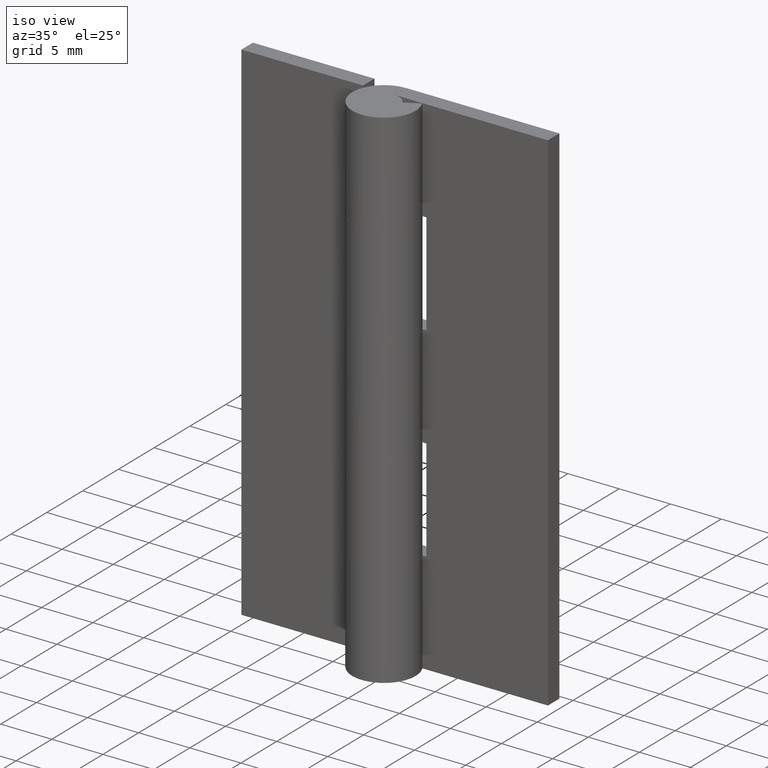
[diagram: clean part render]
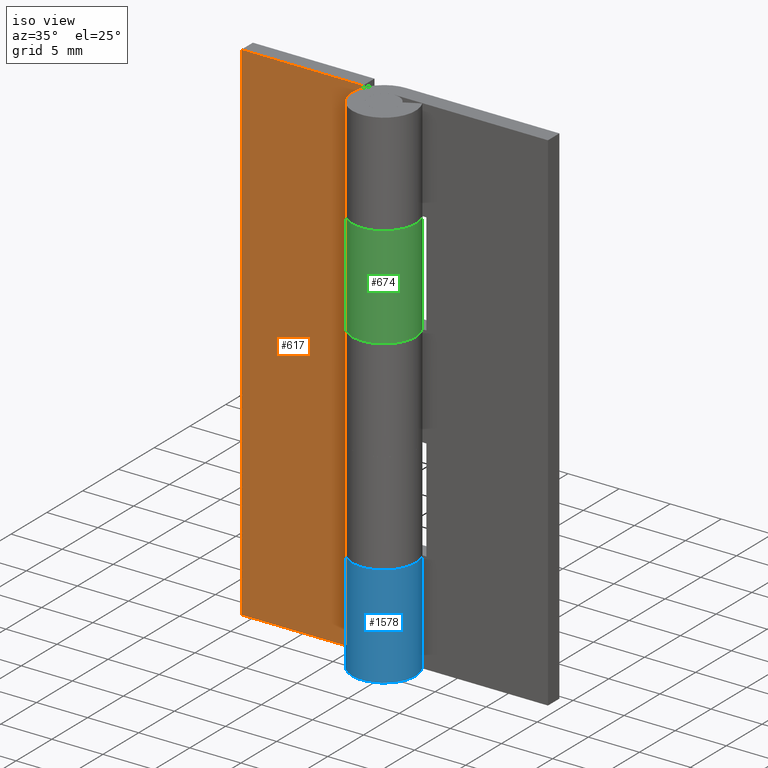
[diagram: same view with three faces highlighted in distinct colors, each labeled with its STEP entity id]
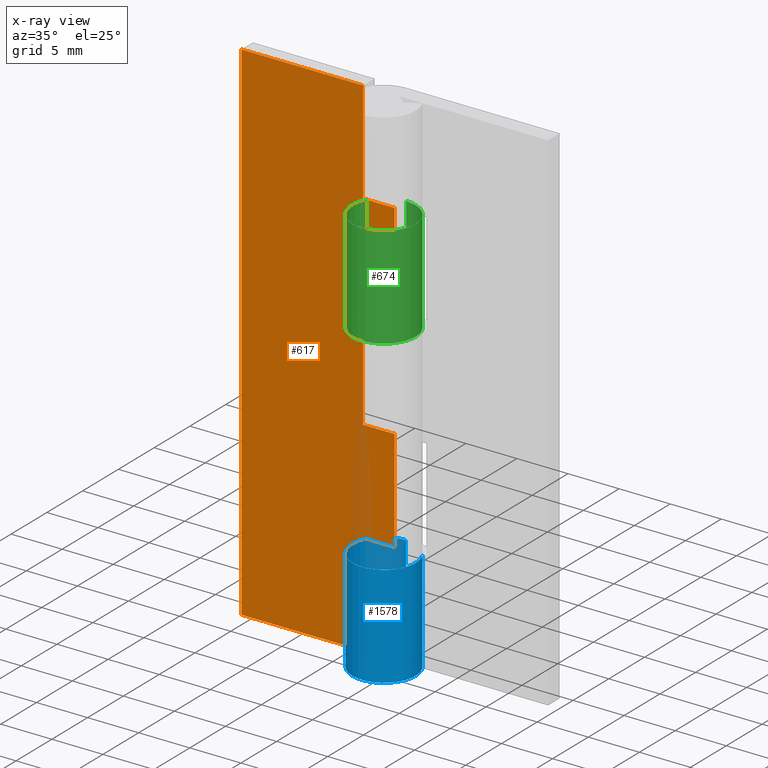
[diagram: x-ray of the same camera — body ghosted, the three highlighted faces saturated]
A machine part, iso view with three faces highlighted in distinct colors.
The next image is the same camera in x-ray (body ghosted, the three faces saturated) — at least one of them is partly hidden behind the body in this view.
Their STEP definitions:

[orange] entity #617 — the highlighted face is a freeform B-spline surface patch.
#79=CARTESIAN_POINT('',(-3.099998000000000,1.499999999999946,20.0));
#80=VERTEX_POINT('',#79);
#86=CARTESIAN_POINT('',(0.0,1.500000000000000,20.0));
#87=VERTEX_POINT('',#86);
#88=CARTESIAN_POINT('',(0.0,1.500000000000000,20.0));
#89=CARTESIAN_POINT('',(-3.099998000000000,1.499999999999946,20.0));
#90=QUASI_UNIFORM_CURVE('',1,(#88,#89),.UNSPECIFIED.,.F.,.U.);
#91=EDGE_CURVE('',#87,#80,#90,.T.);
#135=CARTESIAN_POINT('',(-3.099998000000000,1.499999999999946,29.999993000000099));
#136=VERTEX_POINT('',#135);
#142=CARTESIAN_POINT('',(-3.099998000000000,1.499999999999946,20.0));
#143=CARTESIAN_POINT('',(-3.099998000000000,1.499999999999946,29.999993000000099));
#144=QUASI_UNIFORM_CURVE('',1,(#142,#143),.UNSPECIFIED.,.F.,.U.);
#145=EDGE_CURVE('',#80,#136,#144,.T.);
#191=CARTESIAN_POINT('',(0.0,1.500000000000000,29.999993000000099));
#192=VERTEX_POINT('',#191);
#212=CARTESIAN_POINT('',(-3.099998000000000,1.499999999999946,29.999993000000099));
#213=CARTESIAN_POINT('',(0.0,1.500000000000000,29.999993000000099));
#214=QUASI_UNIFORM_CURVE('',1,(#212,#213),.UNSPECIFIED.,.F.,.U.);
#215=EDGE_CURVE('',#136,#192,#214,.T.);
#225=CARTESIAN_POINT('',(-3.099998000000000,1.499999999999946,10.000000000000121));
#226=VERTEX_POINT('',#225);
#227=CARTESIAN_POINT('',(-3.099998000000000,1.500000000000000,0.0));
#228=VERTEX_POINT('',#227);
#229=CARTESIAN_POINT('',(-3.099998000000000,1.499999999999946,10.000000000000121));
#230=CARTESIAN_POINT('',(-3.099998000000000,1.500000000000000,0.0));
#231=QUASI_UNIFORM_CURVE('',1,(#229,#230),.UNSPECIFIED.,.F.,.U.);
#232=EDGE_CURVE('',#226,#228,#231,.T.);
#291=CARTESIAN_POINT('',(0.0,1.500000000000000,10.000000000000121));
#292=VERTEX_POINT('',#291);
#312=CARTESIAN_POINT('',(0.0,1.500000000000000,10.000000000000121));
#313=CARTESIAN_POINT('',(-3.099998000000000,1.499999999999946,10.000000000000121));
#314=QUASI_UNIFORM_CURVE('',1,(#312,#313),.UNSPECIFIED.,.F.,.U.);
#315=EDGE_CURVE('',#292,#226,#314,.T.);
#331=CARTESIAN_POINT('',(-3.099998000000000,1.499999999999946,49.999993000000003));
#332=VERTEX_POINT('',#331);
#333=CARTESIAN_POINT('',(-3.099998000000000,1.499999999999946,39.999992999999897));
#334=VERTEX_POINT('',#333);
#335=CARTESIAN_POINT('',(-3.099998000000000,1.499999999999946,49.999993000000003));
#336=CARTESIAN_POINT('',(-3.099998000000000,1.499999999999946,39.999992999999897));
#337=QUASI_UNIFORM_CURVE('',1,(#335,#336),.UNSPECIFIED.,.F.,.U.);
#338=EDGE_CURVE('',#332,#334,#337,.T.);
#367=CARTESIAN_POINT('',(0.0,1.500000000000000,39.999992999999897));
#368=VERTEX_POINT('',#367);
#369=CARTESIAN_POINT('',(-3.099998000000000,1.499999999999946,39.999992999999897));
#370=CARTESIAN_POINT('',(0.0,1.500000000000000,39.999992999999897));
#371=QUASI_UNIFORM_CURVE('',1,(#369,#370),.UNSPECIFIED.,.F.,.U.);
#372=EDGE_CURVE('',#334,#368,#371,.T.);
#439=CARTESIAN_POINT('',(-15.0,1.500000000000000,0.0));
#440=VERTEX_POINT('',#439);
#446=CARTESIAN_POINT('',(-15.0,1.500000000000000,49.999993000000003));
#447=VERTEX_POINT('',#446);
#448=CARTESIAN_POINT('',(-15.0,1.500000000000000,49.999993000000003));
#449=CARTESIAN_POINT('',(-15.0,1.500000000000000,0.0));
#450=QUASI_UNIFORM_CURVE('',1,(#448,#449),.UNSPECIFIED.,.F.,.U.);
#451=EDGE_CURVE('',#447,#440,#450,.T.);
#480=CARTESIAN_POINT('',(-15.0,1.500000000000000,49.999993000000003));
#481=CARTESIAN_POINT('',(-3.099998000000000,1.499999999999946,49.999993000000003));
#482=QUASI_UNIFORM_CURVE('',1,(#480,#481),.UNSPECIFIED.,.F.,.U.);
#483=EDGE_CURVE('',#447,#332,#482,.T.);
#499=CARTESIAN_POINT('',(-15.0,1.500000000000000,0.0));
#500=CARTESIAN_POINT('',(-3.099998000000000,1.500000000000000,0.0));
#501=QUASI_UNIFORM_CURVE('',1,(#499,#500),.UNSPECIFIED.,.F.,.U.);
#502=EDGE_CURVE('',#440,#228,#501,.T.);
#585=CARTESIAN_POINT('',(0.0,1.500000000000000,20.0));
#586=CARTESIAN_POINT('',(0.0,1.500000000000000,10.000000000000121));
#587=QUASI_UNIFORM_CURVE('',1,(#585,#586),.UNSPECIFIED.,.F.,.U.);
#588=EDGE_CURVE('',#87,#292,#587,.T.);
#594=CARTESIAN_POINT('',(-15.749249970927091,1.500000000000000,-2.497499374805216));
#595=CARTESIAN_POINT('',(-15.749249970927091,1.500000000000000,52.497490139631353));
#596=CARTESIAN_POINT('',(0.749250373258442,1.500000000000000,-2.497499374805216));
#597=CARTESIAN_POINT('',(0.749250373258442,1.500000000000000,52.497490139631353));
#598=B_SPLINE_SURFACE_WITH_KNOTS('',1,1,((#594,#596),(#595,#597)),.UNSPECIFIED.,.F.,.F.,.U.,(2,2),(2,2),(0.0,54.994989514436568),(0.0,16.498500344185530),.UNSPECIFIED.);
#599=ORIENTED_EDGE('',*,*,#145,.T.);
#600=ORIENTED_EDGE('',*,*,#215,.T.);
#601=CARTESIAN_POINT('',(0.0,1.500000000000000,39.999992999999897));
#602=CARTESIAN_POINT('',(0.0,1.500000000000000,29.999993000000099));
#603=QUASI_UNIFORM_CURVE('',1,(#601,#602),.UNSPECIFIED.,.F.,.U.);
#604=EDGE_CURVE('',#368,#192,#603,.T.);
#605=ORIENTED_EDGE('',*,*,#604,.F.);
#606=ORIENTED_EDGE('',*,*,#372,.F.);
#607=ORIENTED_EDGE('',*,*,#338,.F.);
#608=ORIENTED_EDGE('',*,*,#483,.F.);
#609=ORIENTED_EDGE('',*,*,#451,.T.);
#610=ORIENTED_EDGE('',*,*,#502,.T.);
#611=ORIENTED_EDGE('',*,*,#232,.F.);
#612=ORIENTED_EDGE('',*,*,#315,.F.);
#613=ORIENTED_EDGE('',*,*,#588,.F.);
#614=ORIENTED_EDGE('',*,*,#91,.T.);
#615=EDGE_LOOP('',(#599,#600,#605,#606,#607,#608,#609,#610,#611,#612,#613,#614));
#616=FACE_OUTER_BOUND('',#615,.T.);
#617=ADVANCED_FACE('',(#616),#598,.F.);

[blue] entity #1578 — the highlighted face is a freeform B-spline surface patch.
#851=CARTESIAN_POINT('',(2.739981751764055,1.450000000000000,10.000000000000121));
#852=VERTEX_POINT('',#851);
#853=CARTESIAN_POINT('',(0.0,3.099998000000050,10.000000000000121));
#854=VERTEX_POINT('',#853);
#855=CARTESIAN_POINT('',(2.739981751764055,1.450000000000000,10.000000000000121));
#856=CARTESIAN_POINT('',(3.842027408336786,-0.632471143840447,10.000000000000121));
#857=CARTESIAN_POINT('',(2.130594885355316,-2.251790737784743,10.000000000000121));
#858=CARTESIAN_POINT('',(0.419162362373844,-3.871110331729040,10.000000000000121));
#859=CARTESIAN_POINT('',(-1.599218559171947,-2.655655344977874,10.000000000000121));
#860=CARTESIAN_POINT('',(-3.617599480717733,-1.440200358226712,10.000000000000121));
#861=CARTESIAN_POINT('',(-2.986848545660753,0.829898189834438,10.000000000000121));
#862=CARTESIAN_POINT('',(-2.356097610603771,3.099996737895593,10.000000000000121));
#863=CARTESIAN_POINT('',(0.0,3.099998000000050,10.000000000000121));
#871=(BOUNDED_CURVE()B_SPLINE_CURVE(2,(#855,#856,#857,#858,#859,#860,#861,#862,#863),.UNSPECIFIED.,.F.,.U.)B_SPLINE_CURVE_WITH_KNOTS((3,2,2,2,3),(0.0,0.250000000000000,0.500000000000000,0.750000000000000,1.0),.UNSPECIFIED.)CURVE()GEOMETRIC_REPRESENTATION_ITEM()RATIONAL_B_SPLINE_CURVE((1.0,0.796150117301085,1.0,0.796150117301085,1.0,0.796150117301085,1.0,0.796150117301085,1.0))REPRESENTATION_ITEM(''));
#872=EDGE_CURVE('',#852,#854,#871,.T.);
#916=CARTESIAN_POINT('',(0.003521362805221,3.099998000000050,10.000000000000121));
#917=VERTEX_POINT('',#916);
#923=CARTESIAN_POINT('',(0.003521362805221,3.099998000000050,10.000000000000121));
#924=CARTESIAN_POINT('',(0.0,3.099998000000050,10.000000000000121));
#925=QUASI_UNIFORM_CURVE('',1,(#923,#924),.UNSPECIFIED.,.F.,.U.);
#926=EDGE_CURVE('',#917,#854,#925,.T.);
#1176=CARTESIAN_POINT('',(2.739981751764055,1.450000000000000,0.0));
#1177=VERTEX_POINT('',#1176);
#1183=CARTESIAN_POINT('',(0.003521362805222,3.099998000000000,0.0));
#1184=VERTEX_POINT('',#1183);
#1185=CARTESIAN_POINT('',(2.739981751764052,1.450000000000000,0.0));
#1186=CARTESIAN_POINT('',(3.842352259281344,-0.633086258124317,0.0));
#1187=CARTESIAN_POINT('',(2.129955333572984,-2.252396562993293,0.0));
#1188=CARTESIAN_POINT('',(0.417558407864622,-3.871706867862269,0.0));
#1189=CARTESIAN_POINT('',(-1.600726611546716,-2.654745621540069,0.0));
#1190=CARTESIAN_POINT('',(-3.619011630958053,-1.437784375217869,0.0));
#1191=CARTESIAN_POINT('',(-2.986140433580756,0.832445380150635,0.0));
#1192=CARTESIAN_POINT('',(-2.353269236203459,3.102675135519134,0.0));
#1193=CARTESIAN_POINT('',(0.003521362805222,3.099997999999999,0.0));
#1201=(BOUNDED_CURVE()B_SPLINE_CURVE(2,(#1185,#1186,#1187,#1188,#1189,#1190,#1191,#1192,#1193),.UNSPECIFIED.,.F.,.U.)B_SPLINE_CURVE_WITH_KNOTS((3,2,2,2,3),(0.0,0.250000000000000,0.500000000000000,0.750000000000000,1.0),.UNSPECIFIED.)CURVE()GEOMETRIC_REPRESENTATION_ITEM()RATIONAL_B_SPLINE_CURVE((1.0,0.796064190964140,1.0,0.796064190964140,1.0,0.796064190964140,1.0,0.796064190964140,1.0))REPRESENTATION_ITEM(''));
#1202=EDGE_CURVE('',#1177,#1184,#1201,.T.);
#1500=CARTESIAN_POINT('',(2.739981751764055,1.450000000000000,10.000000000000121));
#1501=CARTESIAN_POINT('',(2.739981751764055,1.450000000000000,0.0));
#1502=QUASI_UNIFORM_CURVE('',1,(#1500,#1501),.UNSPECIFIED.,.F.,.U.);
#1503=EDGE_CURVE('',#852,#1177,#1502,.T.);
#1545=CARTESIAN_POINT('',(0.084668643522651,3.098843529577450,10.250000000000130));
#1546=CARTESIAN_POINT('',(0.084668643522651,3.098843529577450,-0.256250000000003));
#1547=CARTESIAN_POINT('',(-3.652327975527048,3.200948212038399,10.250000000000126));
#1548=CARTESIAN_POINT('',(-3.652327975527048,3.200948212038399,-0.256250000000003));
#1549=CARTESIAN_POINT('',(-3.060969253485462,-0.490374580516416,10.250000000000130));
#1550=CARTESIAN_POINT('',(-3.060969253485462,-0.490374580516416,-0.256250000000003));
#1551=CARTESIAN_POINT('',(-2.469610531443875,-4.181697373071230,10.250000000000126));
#1552=CARTESIAN_POINT('',(-2.469610531443875,-4.181697373071230,-0.256250000000003));
#1553=CARTESIAN_POINT('',(1.048471093309606,-2.917311839089909,10.250000000000130));
#1554=CARTESIAN_POINT('',(1.048471093309606,-2.917311839089909,-0.256250000000003));
#1555=CARTESIAN_POINT('',(4.566552718063089,-1.652926305108590,10.250000000000126));
#1556=CARTESIAN_POINT('',(4.566552718063089,-1.652926305108590,-0.256250000000003));
#1557=CARTESIAN_POINT('',(2.672835900823962,1.570333801223978,10.250000000000130));
#1558=CARTESIAN_POINT('',(2.672835900823962,1.570333801223978,-0.256250000000003));
#1566=(BOUNDED_SURFACE()B_SPLINE_SURFACE(1,2,((#1545,#1547,#1549,#1551,#1553,#1555,#1557),(#1546,#1548,#1550,#1552,#1554,#1556,#1558)),.UNSPECIFIED.,.F.,.F.,.U.)B_SPLINE_SURFACE_WITH_KNOTS((2,2),(3,2,2,3),(0.0,10.506250000000129),(0.0,5.826188062565753,11.652376125131511,17.478564187697259),.UNSPECIFIED.)GEOMETRIC_REPRESENTATION_ITEM()RATIONAL_B_SPLINE_SURFACE(((1.0,0.638320090924328,1.0,0.638320090924328,1.0,0.638320090924328,1.0),(1.0,0.638320090924328,1.0,0.638320090924328,1.0,0.638320090924328,1.0)))REPRESENTATION_ITEM('')SURFACE());
#1567=ORIENTED_EDGE('',*,*,#872,.T.);
#1568=ORIENTED_EDGE('',*,*,#926,.F.);
#1569=CARTESIAN_POINT('',(0.003521362805221,3.099998000000050,10.000000000000121));
#1570=CARTESIAN_POINT('',(0.003521362805222,3.099998000000000,0.0));
#1571=QUASI_UNIFORM_CURVE('',1,(#1569,#1570),.UNSPECIFIED.,.F.,.U.);
#1572=EDGE_CURVE('',#917,#1184,#1571,.T.);
#1573=ORIENTED_EDGE('',*,*,#1572,.T.);
#1574=ORIENTED_EDGE('',*,*,#1202,.F.);
#1575=ORIENTED_EDGE('',*,*,#1503,.F.);
#1576=EDGE_LOOP('',(#1567,#1568,#1573,#1574,#1575));
#1577=FACE_OUTER_BOUND('',#1576,.T.);
#1578=ADVANCED_FACE('',(#1577),#1566,.T.);

[green] entity #674 — the highlighted face is a freeform B-spline surface patch.
#156=CARTESIAN_POINT('',(0.003521362805221,3.099998000000000,29.999993000000099));
#157=VERTEX_POINT('',#156);
#163=CARTESIAN_POINT('',(-2.739981751764050,1.450000000000000,29.999993000000099));
#164=VERTEX_POINT('',#163);
#165=CARTESIAN_POINT('',(0.003521362805220,3.099997999999999,29.999993000000099));
#166=CARTESIAN_POINT('',(2.358923094760800,3.097322442128588,29.999993000000092));
#167=CARTESIAN_POINT('',(2.987554489866698,0.827356132555584,29.999993000000099));
#168=CARTESIAN_POINT('',(3.616185884972595,-1.442610177017417,29.999993000000092));
#169=CARTESIAN_POINT('',(1.597709990920186,-2.656562211752968,29.999993000000099));
#170=CARTESIAN_POINT('',(-0.420765903132224,-3.870514246488519,29.999993000000092));
#171=CARTESIAN_POINT('',(-2.131234265315451,-2.251186466365083,29.999993000000099));
#172=CARTESIAN_POINT('',(-3.841702627498679,-0.631858686241647,29.999993000000092));
#173=CARTESIAN_POINT('',(-2.739981751764052,1.450000000000000,29.999993000000099));
#181=(BOUNDED_CURVE()B_SPLINE_CURVE(2,(#165,#166,#167,#168,#169,#170,#171,#172,#173),.UNSPECIFIED.,.F.,.U.)B_SPLINE_CURVE_WITH_KNOTS((3,2,2,2,3),(0.0,0.250000000000000,0.500000000000000,0.750000000000000,1.0),.UNSPECIFIED.)CURVE()GEOMETRIC_REPRESENTATION_ITEM()RATIONAL_B_SPLINE_CURVE((1.0,0.796236027586614,1.0,0.796236027586614,1.0,0.796236027586614,1.0,0.796236027586614,1.0))REPRESENTATION_ITEM(''));
#182=EDGE_CURVE('',#157,#164,#181,.T.);
#395=CARTESIAN_POINT('',(-2.739981751764050,1.450000000000000,39.999992999999897));
#396=VERTEX_POINT('',#395);
#402=CARTESIAN_POINT('',(0.003521362805221,3.099998000000050,39.999992999999897));
#403=VERTEX_POINT('',#402);
#404=CARTESIAN_POINT('',(0.003521362805220,3.099997999999999,39.999992999999897));
#405=CARTESIAN_POINT('',(2.358923094760800,3.097322442128588,39.999992999999904));
#406=CARTESIAN_POINT('',(2.987554489866698,0.827356132555584,39.999992999999897));
#407=CARTESIAN_POINT('',(3.616185884972595,-1.442610177017417,39.999992999999904));
#408=CARTESIAN_POINT('',(1.597709990920186,-2.656562211752968,39.999992999999897));
#409=CARTESIAN_POINT('',(-0.420765903132224,-3.870514246488519,39.999992999999904));
#410=CARTESIAN_POINT('',(-2.131234265315451,-2.251186466365083,39.999992999999897));
#411=CARTESIAN_POINT('',(-3.841702627498679,-0.631858686241647,39.999992999999904));
#412=CARTESIAN_POINT('',(-2.739981751764052,1.450000000000000,39.999992999999897));
#420=(BOUNDED_CURVE()B_SPLINE_CURVE(2,(#404,#405,#406,#407,#408,#409,#410,#411,#412),.UNSPECIFIED.,.F.,.U.)B_SPLINE_CURVE_WITH_KNOTS((3,2,2,2,3),(0.0,0.250000000000000,0.500000000000000,0.750000000000000,1.0),.UNSPECIFIED.)CURVE()GEOMETRIC_REPRESENTATION_ITEM()RATIONAL_B_SPLINE_CURVE((1.0,0.796236027586614,1.0,0.796236027586614,1.0,0.796236027586614,1.0,0.796236027586614,1.0))REPRESENTATION_ITEM(''));
#421=EDGE_CURVE('',#403,#396,#420,.T.);
#623=CARTESIAN_POINT('',(0.003521362805221,3.099998000000050,39.999992999999897));
#624=CARTESIAN_POINT('',(0.003521362805221,3.099998000000000,29.999993000000099));
#625=QUASI_UNIFORM_CURVE('',1,(#623,#624),.UNSPECIFIED.,.F.,.U.);
#626=EDGE_CURVE('',#403,#157,#625,.T.);
#642=CARTESIAN_POINT('',(-2.701086253403874,1.521227481895005,40.249992999999897));
#643=CARTESIAN_POINT('',(-2.701086253403874,1.521227481895005,29.743743000000102));
#644=CARTESIAN_POINT('',(-4.535584156375530,-1.736100647256542,40.249992999999911));
#645=CARTESIAN_POINT('',(-4.535584156375530,-1.736100647256542,29.743743000000102));
#646=CARTESIAN_POINT('',(-0.994984302584502,-2.935984713449718,40.249992999999897));
#647=CARTESIAN_POINT('',(-0.994984302584502,-2.935984713449718,29.743743000000102));
#648=CARTESIAN_POINT('',(2.545615551206526,-4.135868779642896,40.249992999999911));
#649=CARTESIAN_POINT('',(2.545615551206526,-4.135868779642896,29.743743000000102));
#650=CARTESIAN_POINT('',(3.069419339239028,-0.434355752702138,40.249992999999897));
#651=CARTESIAN_POINT('',(3.069419339239028,-0.434355752702138,29.743743000000102));
#652=CARTESIAN_POINT('',(3.593223127271530,3.267157274238619,40.249992999999911));
#653=CARTESIAN_POINT('',(3.593223127271530,3.267157274238619,29.743743000000102));
#654=CARTESIAN_POINT('',(-0.141283570192311,3.096778802690581,40.249992999999897));
#655=CARTESIAN_POINT('',(-0.141283570192311,3.096778802690581,29.743743000000102));
#663=(BOUNDED_SURFACE()B_SPLINE_SURFACE(1,2,((#642,#644,#646,#648,#650,#652,#654),(#643,#645,#647,#649,#651,#653,#655)),.UNSPECIFIED.,.F.,.F.,.U.)B_SPLINE_SURFACE_WITH_KNOTS((2,2),(3,2,2,3),(0.0,10.506249999999801),(0.0,5.826188062565751,11.652376125131500,17.478564187697248),.UNSPECIFIED.)GEOMETRIC_REPRESENTATION_ITEM()RATIONAL_B_SPLINE_SURFACE(((1.0,0.638320090924328,1.0,0.638320090924328,1.0,0.638320090924328,1.0),(1.0,0.638320090924328,1.0,0.638320090924328,1.0,0.638320090924328,1.0)))REPRESENTATION_ITEM('')SURFACE());
#664=ORIENTED_EDGE('',*,*,#182,.F.);
#665=ORIENTED_EDGE('',*,*,#626,.F.);
#666=ORIENTED_EDGE('',*,*,#421,.T.);
#667=CARTESIAN_POINT('',(-2.739981751764050,1.450000000000000,39.999992999999897));
#668=CARTESIAN_POINT('',(-2.739981751764050,1.450000000000000,29.999993000000099));
#669=QUASI_UNIFORM_CURVE('',1,(#667,#668),.UNSPECIFIED.,.F.,.U.);
#670=EDGE_CURVE('',#396,#164,#669,.T.);
#671=ORIENTED_EDGE('',*,*,#670,.T.);
#672=EDGE_LOOP('',(#664,#665,#666,#671));
#673=FACE_OUTER_BOUND('',#672,.T.);
#674=ADVANCED_FACE('',(#673),#663,.T.);